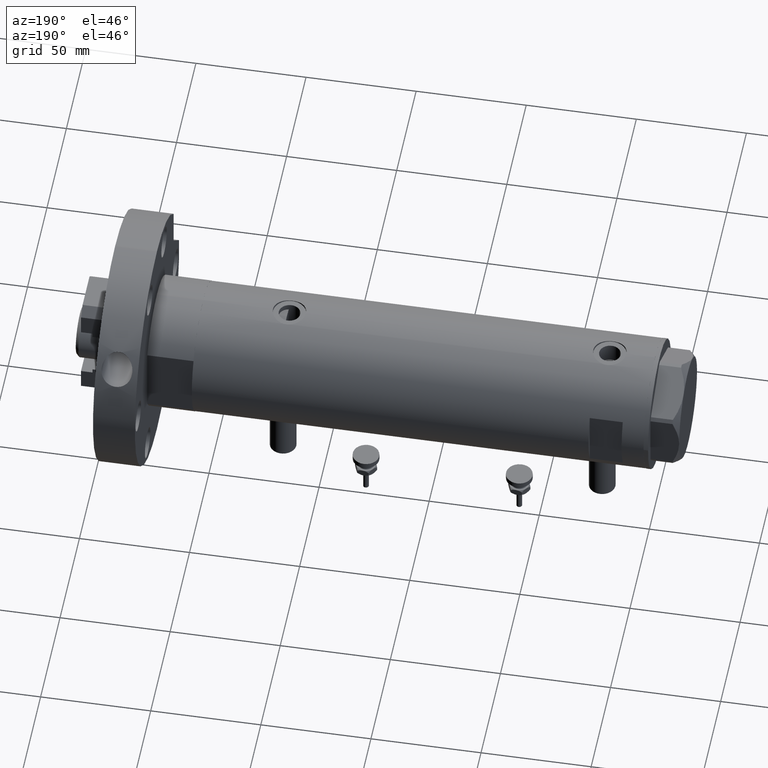
[diagram: clean part render]
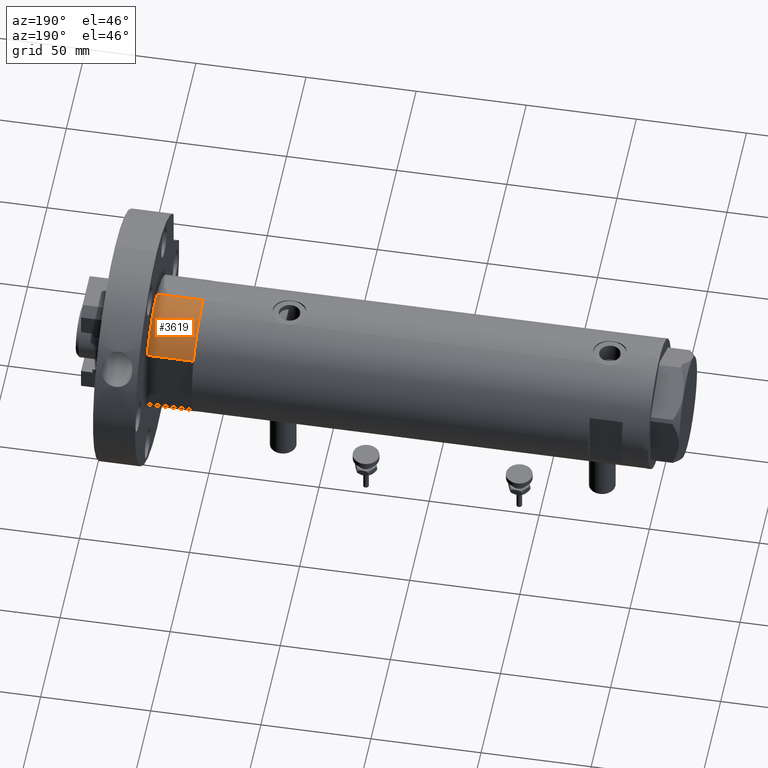
[diagram: same view with one face highlighted and labeled with its STEP entity id]
A machine part, auxiliary view. The second image highlights one B-rep face of the part: STEP entity #3619.
In plain terms, the highlighted cylindrical surface (partial cylindrical patch) has radius 29.5 mm, axis along (-1, -0, 0).
Its self-contained STEP definition (entity closure, byte-faithful):
#109 = CARTESIAN_POINT ( 'NONE',  ( -29.50000000000000355, 0.000000000000000000, 0.000000000000000000 ) ) ;
#184 = DIRECTION ( 'NONE',  ( -0.000000000000000000, -0.000000000000000000, -1.000000000000000000 ) ) ;
#271 = CARTESIAN_POINT ( 'NONE',  ( -29.50000000000000355, 0.000000000000000000, 21.00000000000000000 ) ) ;
#550 = AXIS2_PLACEMENT_3D ( 'NONE', #8212, #6967, #7001 ) ;
#608 = VERTEX_POINT ( 'NONE', #2399 ) ;
#1224 = AXIS2_PLACEMENT_3D ( 'NONE', #6418, #3225, #3899 ) ;
#1226 = CARTESIAN_POINT ( 'NONE',  ( 0.000000000000000000, 0.000000000000000000, 21.00000000000000000 ) ) ;
#1293 = ORIENTED_EDGE ( 'NONE', *, *, #8287, .F. ) ;
#1803 = EDGE_CURVE ( 'NONE', #4127, #5733, #7015, .T. ) ;
#1820 = DIRECTION ( 'NONE',  ( -1.000000000000000000, 0.000000000000000000, 0.000000000000000000 ) ) ;
#2225 = EDGE_CURVE ( 'NONE', #608, #3713, #7804, .T. ) ;
#2399 = CARTESIAN_POINT ( 'NONE',  ( -15.66045976336583045, 24.99999999999999645, 21.00000000000000355 ) ) ;
#2919 = ORIENTED_EDGE ( 'NONE', *, *, #1803, .T. ) ;
#3225 = DIRECTION ( 'NONE',  ( 0.000000000000000000, 0.000000000000000000, 1.000000000000000000 ) ) ;
#3588 = VECTOR ( 'NONE', #184, 1000.000000000000000 ) ;
#3619 = ADVANCED_FACE ( 'NONE', ( #4559 ), #5775, .T. ) ;
#3643 = EDGE_CURVE ( 'NONE', #4127, #608, #7713, .T. ) ;
#3713 = VERTEX_POINT ( 'NONE', #5392 ) ;
#3757 = ORIENTED_EDGE ( 'NONE', *, *, #2225, .F. ) ;
#3899 = DIRECTION ( 'NONE',  ( 1.000000000000000000, 0.000000000000000000, 0.000000000000000000 ) ) ;
#4127 = VERTEX_POINT ( 'NONE', #6397 ) ;
#4252 = ORIENTED_EDGE ( 'NONE', *, *, #3643, .F. ) ;
#4397 = DIRECTION ( 'NONE',  ( -0.000000000000000000, -0.000000000000000000, 1.000000000000000000 ) ) ;
#4559 = FACE_OUTER_BOUND ( 'NONE', #6950, .T. ) ;
#5392 = CARTESIAN_POINT ( 'NONE',  ( -29.50000000000000355, 0.000000000000000000, 21.00000000000000000 ) ) ;
#5688 = AXIS2_PLACEMENT_3D ( 'NONE', #1226, #8304, #1820 ) ;
#5733 = VERTEX_POINT ( 'NONE', #109 ) ;
#5775 = CYLINDRICAL_SURFACE ( 'NONE', #5688, 29.50000000000000355 ) ;
#5936 = LINE ( 'NONE', #271, #3588 ) ;
#6355 = VECTOR ( 'NONE', #4397, 1000.000000000000000 ) ;
#6397 = CARTESIAN_POINT ( 'NONE',  ( -15.66045976336583401, 25.00000000000000000, 0.000000000000000000 ) ) ;
#6418 = CARTESIAN_POINT ( 'NONE',  ( 0.000000000000000000, 0.000000000000000000, 0.000000000000000000 ) ) ;
#6449 = CARTESIAN_POINT ( 'NONE',  ( -15.66045976336583401, 25.00000000000000000, 0.000000000000000000 ) ) ;
#6950 = EDGE_LOOP ( 'NONE', ( #1293, #3757, #4252, #2919 ) ) ;
#6967 = DIRECTION ( 'NONE',  ( 0.000000000000000000, 0.000000000000000000, 1.000000000000000000 ) ) ;
#7001 = DIRECTION ( 'NONE',  ( 1.000000000000000000, 0.000000000000000000, 0.000000000000000000 ) ) ;
#7015 = CIRCLE ( 'NONE', #1224, 29.50000000000000355 ) ;
#7713 = LINE ( 'NONE', #6449, #6355 ) ;
#7804 = CIRCLE ( 'NONE', #550, 29.50000000000000355 ) ;
#8212 = CARTESIAN_POINT ( 'NONE',  ( 0.000000000000000000, 0.000000000000000000, 21.00000000000000000 ) ) ;
#8287 = EDGE_CURVE ( 'NONE', #3713, #5733, #5936, .T. ) ;
#8304 = DIRECTION ( 'NONE',  ( -0.000000000000000000, -0.000000000000000000, -1.000000000000000000 ) ) ;